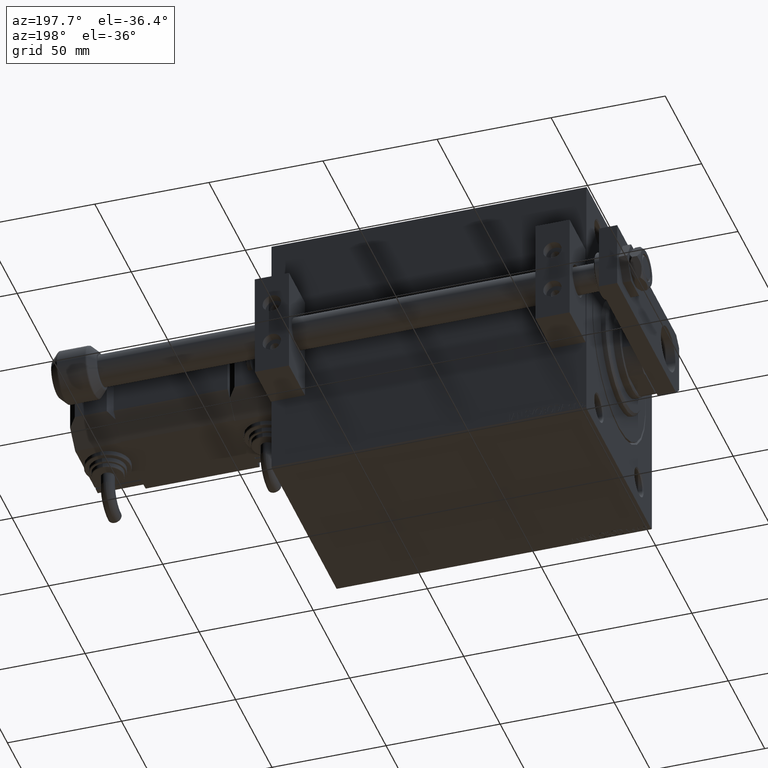
[diagram: clean part render]
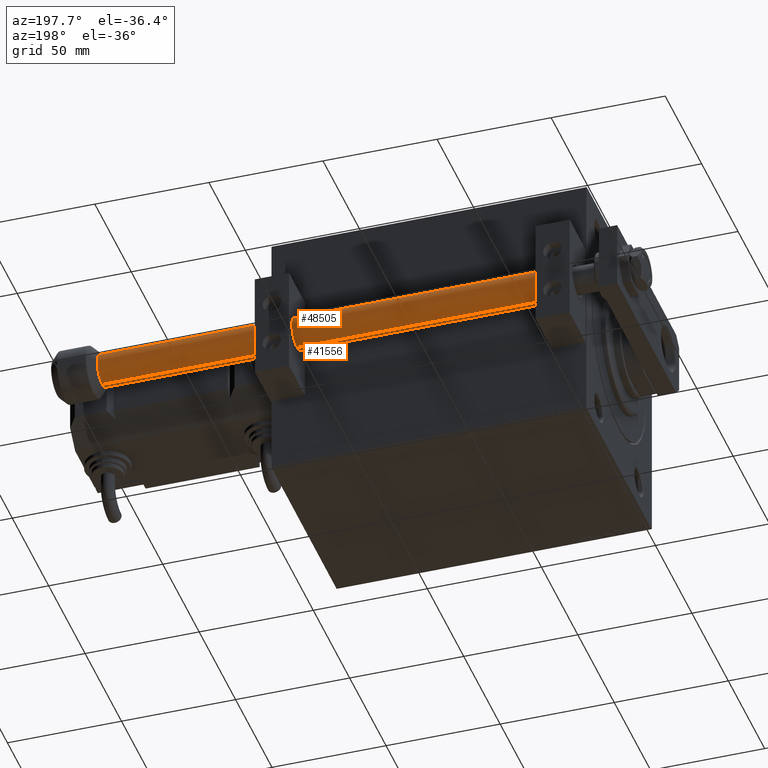
[diagram: same view with one multi-face feature highlighted, each face labeled with its STEP entity id]
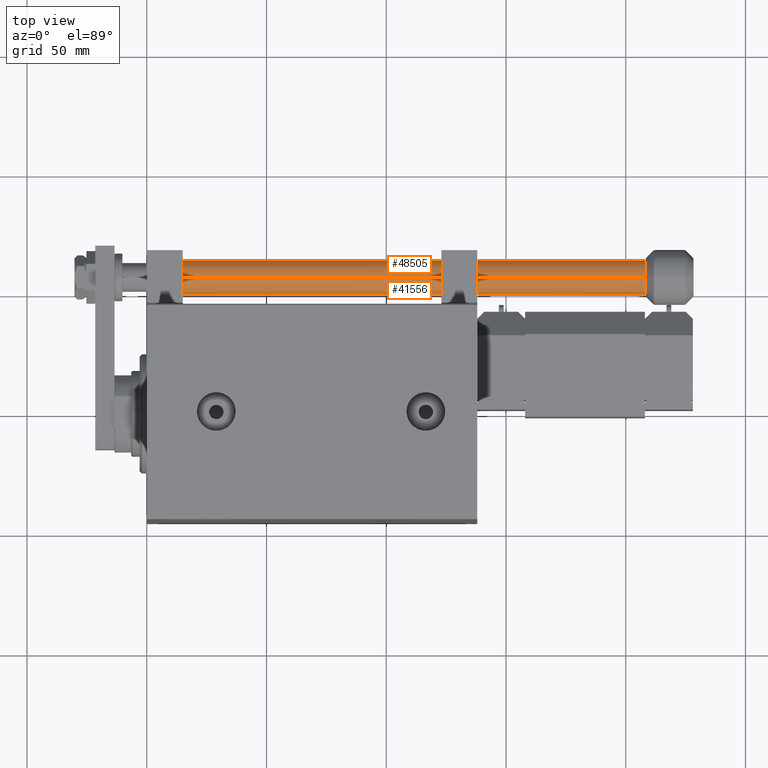
[diagram: same view with one multi-face feature highlighted, each face labeled with its STEP entity id]
A machine part, auxiliary view. The highlighted faces form ONE feature: a constant-radius fillet chain: 2 tangent blend faces with common blend radius 7 mm. The faces share edges in the B-rep.
A second angle (top view) of the same feature is appended — it is thin or edge-on in the first view.
Their STEP definitions:
[1] entity #41556 (Cylinder):
#654 = VERTEX_POINT ( 'NONE', #19176 ) ;
#1116 = FACE_OUTER_BOUND ( 'NONE', #38288, .T. ) ;
#1972 = VERTEX_POINT ( 'NONE', #2406 ) ;
#2406 = CARTESIAN_POINT ( 'NONE',  ( -7.000000000000000000, 0.000000000000000000, 2.000000000000057288 ) ) ;
#3658 = LINE ( 'NONE', #42049, #15651 ) ;
#4046 = DIRECTION ( 'NONE',  ( 1.000000000000000000, 0.000000000000000000, 0.000000000000000000 ) ) ;
#4139 = EDGE_CURVE ( 'NONE', #1972, #20075, #46997, .T. ) ;
#5030 = DIRECTION ( 'NONE',  ( 0.000000000000000000, 0.000000000000000000, -1.000000000000000000 ) ) ;
#6136 = DIRECTION ( 'NONE',  ( -0.000000000000000000, -0.000000000000000000, -1.000000000000000000 ) ) ;
#6727 = CARTESIAN_POINT ( 'NONE',  ( 0.000000000000000000, 0.000000000000000000, 227.0000000000001421 ) ) ;
#7115 = AXIS2_PLACEMENT_3D ( 'NONE', #8068, #5030, #4046 ) ;
#7284 = CARTESIAN_POINT ( 'NONE',  ( 0.000000000000000000, 0.000000000000000000, 2.000000000000057288 ) ) ;
#8068 = CARTESIAN_POINT ( 'NONE',  ( 0.000000000000000000, 0.000000000000000000, 227.0000000000001421 ) ) ;
#11465 = VERTEX_POINT ( 'NONE', #29376 ) ;
#11534 = DIRECTION ( 'NONE',  ( 1.000000000000000000, 0.000000000000000000, 0.000000000000000000 ) ) ;
#13951 = LINE ( 'NONE', #45053, #39782 ) ;
#15002 = DIRECTION ( 'NONE',  ( -0.000000000000000000, -0.000000000000000000, -1.000000000000000000 ) ) ;
#15488 = AXIS2_PLACEMENT_3D ( 'NONE', #6727, #48701, #41105 ) ;
#15517 = AXIS2_PLACEMENT_3D ( 'NONE', #7284, #34600, #49772 ) ;
#15651 = VECTOR ( 'NONE', #15002, 1000.000000000000000 ) ;
#16095 = EDGE_CURVE ( 'NONE', #11465, #42709, #18723, .T. ) ;
#17003 = CYLINDRICAL_SURFACE ( 'NONE', #30956, 7.000000000000000000 ) ;
#18723 = CIRCLE ( 'NONE', #15488, 7.000000000000000000 ) ;
#19176 = CARTESIAN_POINT ( 'NONE',  ( 7.000000000000000000, 8.572527594031471218E-16, 227.0000000000001421 ) ) ;
#19827 = DIRECTION ( 'NONE',  ( -1.000000000000000000, 0.000000000000000000, 0.000000000000000000 ) ) ;
#20075 = VERTEX_POINT ( 'NONE', #29799 ) ;
#20375 = EDGE_CURVE ( 'NONE', #654, #41624, #20505, .T. ) ;
#20505 = CIRCLE ( 'NONE', #48767, 7.000000000000000000 ) ;
#20683 = ORIENTED_EDGE ( 'NONE', *, *, #42726, .F. ) ;
#24116 = CARTESIAN_POINT ( 'NONE',  ( 0.000000000000000000, 0.000000000000000000, 228.0000000000000000 ) ) ;
#28115 = CIRCLE ( 'NONE', #7115, 7.000000000000000000 ) ;
#29376 = CARTESIAN_POINT ( 'NONE',  ( -0.4999999999999975020, -6.982120021884608896, 227.0000000000000000 ) ) ;
#29631 = ORIENTED_EDGE ( 'NONE', *, *, #16095, .T. ) ;
#29799 = CARTESIAN_POINT ( 'NONE',  ( 7.000000000000000000, 8.572527594031471218E-16, 2.000000000000057288 ) ) ;
#30956 = AXIS2_PLACEMENT_3D ( 'NONE', #24116, #32444, #19827 ) ;
#32444 = DIRECTION ( 'NONE',  ( -0.000000000000000000, -0.000000000000000000, -1.000000000000000000 ) ) ;
#34235 = CARTESIAN_POINT ( 'NONE',  ( -7.000000000000000000, 0.000000000000000000, 227.0000000000001421 ) ) ;
#34600 = DIRECTION ( 'NONE',  ( -0.000000000000000000, -0.000000000000000000, 1.000000000000000000 ) ) ;
#34712 = EDGE_CURVE ( 'NONE', #41624, #11465, #28115, .T. ) ;
#36489 = CARTESIAN_POINT ( 'NONE',  ( 0.5000000000000001110, -6.982120021884608896, 227.0000000000000000 ) ) ;
#38288 = EDGE_LOOP ( 'NONE', ( #20683, #44916, #38523, #29631, #41099, #42146 ) ) ;
#38523 = ORIENTED_EDGE ( 'NONE', *, *, #34712, .T. ) ;
#39782 = VECTOR ( 'NONE', #6136, 1000.000000000000000 ) ;
#40711 = EDGE_CURVE ( 'NONE', #42709, #1972, #13951, .T. ) ;
#41099 = ORIENTED_EDGE ( 'NONE', *, *, #40711, .T. ) ;
#41105 = DIRECTION ( 'NONE',  ( 1.000000000000000000, 0.000000000000000000, 0.000000000000000000 ) ) ;
#41556 = ADVANCED_FACE ( 'NONE', ( #1116 ), #17003, .T. ) ;
#41624 = VERTEX_POINT ( 'NONE', #36489 ) ;
#42049 = CARTESIAN_POINT ( 'NONE',  ( 7.000000000000000000, 8.572527594031471218E-16, 228.0000000000000000 ) ) ;
#42146 = ORIENTED_EDGE ( 'NONE', *, *, #4139, .T. ) ;
#42709 = VERTEX_POINT ( 'NONE', #34235 ) ;
#42726 = EDGE_CURVE ( 'NONE', #654, #20075, #3658, .T. ) ;
#44916 = ORIENTED_EDGE ( 'NONE', *, *, #20375, .T. ) ;
#45053 = CARTESIAN_POINT ( 'NONE',  ( -7.000000000000000000, 0.000000000000000000, 228.0000000000000000 ) ) ;
#45667 = DIRECTION ( 'NONE',  ( 0.000000000000000000, 0.000000000000000000, -1.000000000000000000 ) ) ;
#46997 = CIRCLE ( 'NONE', #15517, 7.000000000000000000 ) ;
#48701 = DIRECTION ( 'NONE',  ( 0.000000000000000000, 0.000000000000000000, -1.000000000000000000 ) ) ;
#48767 = AXIS2_PLACEMENT_3D ( 'NONE', #49983, #45667, #11534 ) ;
#49772 = DIRECTION ( 'NONE',  ( 1.000000000000000000, 0.000000000000000000, 0.000000000000000000 ) ) ;
#49983 = CARTESIAN_POINT ( 'NONE',  ( 0.000000000000000000, 0.000000000000000000, 227.0000000000001421 ) ) ;
[2] entity #48505 (Cylinder):
#654 = VERTEX_POINT ( 'NONE', #19176 ) ;
#1159 = CARTESIAN_POINT ( 'NONE',  ( 0.000000000000000000, 0.000000000000000000, 227.0000000000001421 ) ) ;
#1390 = VERTEX_POINT ( 'NONE', #49028 ) ;
#1972 = VERTEX_POINT ( 'NONE', #2406 ) ;
#2157 = AXIS2_PLACEMENT_3D ( 'NONE', #8398, #16212, #47323 ) ;
#2406 = CARTESIAN_POINT ( 'NONE',  ( -7.000000000000000000, 0.000000000000000000, 2.000000000000057288 ) ) ;
#3658 = LINE ( 'NONE', #42049, #15651 ) ;
#4431 = VERTEX_POINT ( 'NONE', #19276 ) ;
#4622 = CYLINDRICAL_SURFACE ( 'NONE', #2157, 7.000000000000000000 ) ;
#6136 = DIRECTION ( 'NONE',  ( -0.000000000000000000, -0.000000000000000000, -1.000000000000000000 ) ) ;
#6451 = EDGE_CURVE ( 'NONE', #20075, #1972, #20425, .T. ) ;
#8244 = EDGE_CURVE ( 'NONE', #1390, #4431, #15513, .T. ) ;
#8398 = CARTESIAN_POINT ( 'NONE',  ( 0.000000000000000000, 0.000000000000000000, 228.0000000000000000 ) ) ;
#9011 = ORIENTED_EDGE ( 'NONE', *, *, #6451, .T. ) ;
#9241 = AXIS2_PLACEMENT_3D ( 'NONE', #26113, #33953, #10940 ) ;
#9899 = ORIENTED_EDGE ( 'NONE', *, *, #8244, .T. ) ;
#10940 = DIRECTION ( 'NONE',  ( 1.000000000000000000, 0.000000000000000000, 0.000000000000000000 ) ) ;
#13951 = LINE ( 'NONE', #45053, #39782 ) ;
#15002 = DIRECTION ( 'NONE',  ( -0.000000000000000000, -0.000000000000000000, -1.000000000000000000 ) ) ;
#15513 = CIRCLE ( 'NONE', #33305, 7.000000000000000000 ) ;
#15651 = VECTOR ( 'NONE', #15002, 1000.000000000000000 ) ;
#15824 = DIRECTION ( 'NONE',  ( 0.000000000000000000, 0.000000000000000000, -1.000000000000000000 ) ) ;
#15827 = CIRCLE ( 'NONE', #18225, 7.000000000000000000 ) ;
#16212 = DIRECTION ( 'NONE',  ( -0.000000000000000000, -0.000000000000000000, -1.000000000000000000 ) ) ;
#16471 = ORIENTED_EDGE ( 'NONE', *, *, #42726, .T. ) ;
#18225 = AXIS2_PLACEMENT_3D ( 'NONE', #24625, #29148, #21566 ) ;
#19176 = CARTESIAN_POINT ( 'NONE',  ( 7.000000000000000000, 8.572527594031471218E-16, 227.0000000000001421 ) ) ;
#19276 = CARTESIAN_POINT ( 'NONE',  ( 0.4999999999999901190, 6.982120021884471228, 227.0000000000001421 ) ) ;
#19512 = FACE_OUTER_BOUND ( 'NONE', #49184, .T. ) ;
#20075 = VERTEX_POINT ( 'NONE', #29799 ) ;
#20425 = CIRCLE ( 'NONE', #27676, 7.000000000000000000 ) ;
#21566 = DIRECTION ( 'NONE',  ( 1.000000000000000000, -1.776356839400250465E-15, 0.000000000000000000 ) ) ;
#22100 = EDGE_CURVE ( 'NONE', #42709, #1390, #37503, .T. ) ;
#24625 = CARTESIAN_POINT ( 'NONE',  ( 0.000000000000000000, 0.000000000000000000, 227.0000000000001421 ) ) ;
#26113 = CARTESIAN_POINT ( 'NONE',  ( 0.000000000000000000, 0.000000000000000000, 227.0000000000001421 ) ) ;
#26115 = DIRECTION ( 'NONE',  ( 1.000000000000000000, 0.000000000000000000, 0.000000000000000000 ) ) ;
#27676 = AXIS2_PLACEMENT_3D ( 'NONE', #38510, #46086, #26115 ) ;
#29148 = DIRECTION ( 'NONE',  ( 0.000000000000000000, 0.000000000000000000, -1.000000000000000000 ) ) ;
#29799 = CARTESIAN_POINT ( 'NONE',  ( 7.000000000000000000, 8.572527594031471218E-16, 2.000000000000057288 ) ) ;
#31687 = ORIENTED_EDGE ( 'NONE', *, *, #22100, .T. ) ;
#32739 = ORIENTED_EDGE ( 'NONE', *, *, #40711, .F. ) ;
#33305 = AXIS2_PLACEMENT_3D ( 'NONE', #1159, #15824, #35054 ) ;
#33953 = DIRECTION ( 'NONE',  ( 0.000000000000000000, 0.000000000000000000, -1.000000000000000000 ) ) ;
#34235 = CARTESIAN_POINT ( 'NONE',  ( -7.000000000000000000, 0.000000000000000000, 227.0000000000001421 ) ) ;
#35054 = DIRECTION ( 'NONE',  ( 1.000000000000000000, 1.421085471520200372E-14, 0.000000000000000000 ) ) ;
#37503 = CIRCLE ( 'NONE', #9241, 7.000000000000000000 ) ;
#38510 = CARTESIAN_POINT ( 'NONE',  ( 0.000000000000000000, 0.000000000000000000, 2.000000000000057288 ) ) ;
#39782 = VECTOR ( 'NONE', #6136, 1000.000000000000000 ) ;
#40711 = EDGE_CURVE ( 'NONE', #42709, #1972, #13951, .T. ) ;
#42049 = CARTESIAN_POINT ( 'NONE',  ( 7.000000000000000000, 8.572527594031471218E-16, 228.0000000000000000 ) ) ;
#42709 = VERTEX_POINT ( 'NONE', #34235 ) ;
#42726 = EDGE_CURVE ( 'NONE', #654, #20075, #3658, .T. ) ;
#45053 = CARTESIAN_POINT ( 'NONE',  ( -7.000000000000000000, 0.000000000000000000, 228.0000000000000000 ) ) ;
#46086 = DIRECTION ( 'NONE',  ( -0.000000000000000000, -0.000000000000000000, 1.000000000000000000 ) ) ;
#47323 = DIRECTION ( 'NONE',  ( -1.000000000000000000, 0.000000000000000000, 0.000000000000000000 ) ) ;
#47432 = ORIENTED_EDGE ( 'NONE', *, *, #48270, .T. ) ;
#48270 = EDGE_CURVE ( 'NONE', #4431, #654, #15827, .T. ) ;
#48505 = ADVANCED_FACE ( 'NONE', ( #19512 ), #4622, .T. ) ;
#49028 = CARTESIAN_POINT ( 'NONE',  ( -0.4999999999999992784, 6.982120021884608896, 227.0000000000000000 ) ) ;
#49184 = EDGE_LOOP ( 'NONE', ( #47432, #16471, #9011, #32739, #31687, #9899 ) ) ;